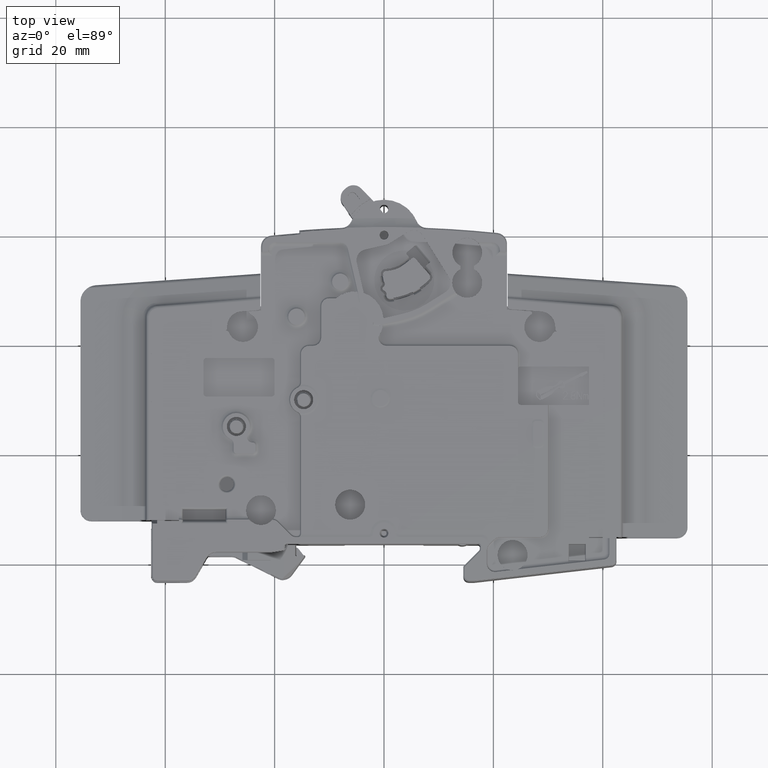
[diagram: clean part render]
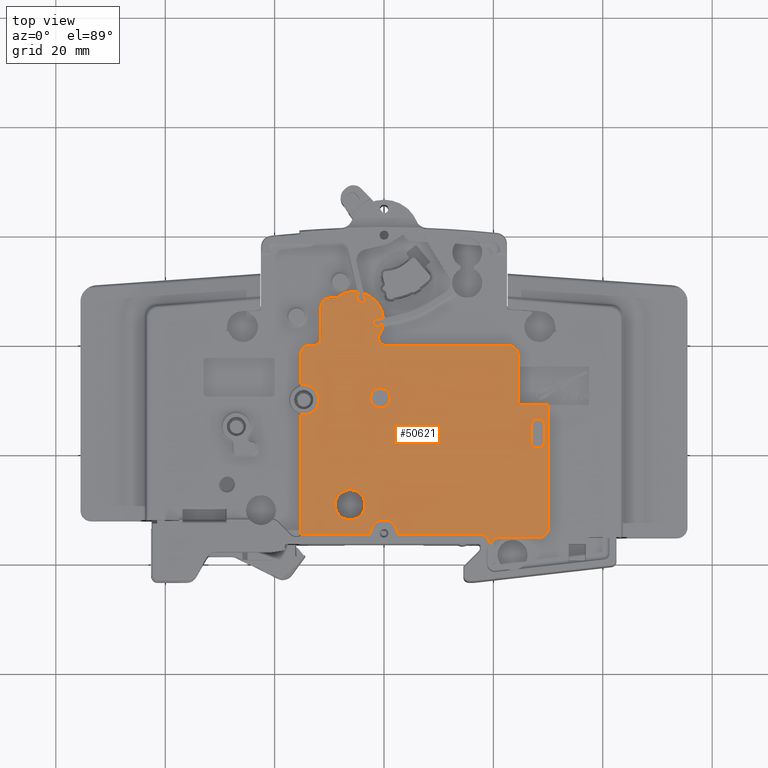
[diagram: same view with one face highlighted and labeled with its STEP entity id]
A machine part, top view. The second image highlights one B-rep face of the part: STEP entity #50621.
In plain terms, the highlighted planar face has unit normal (0, 0, 1).
Its self-contained STEP definition (entity closure, byte-faithful):
#3258=CARTESIAN_POINT('',(2.5E1,-3.055E1,8.65E0));
#3259=DIRECTION('',(0.E0,0.E0,-1.E0));
#3260=DIRECTION('',(0.E0,-1.E0,0.E0));
#3261=AXIS2_PLACEMENT_3D('',#3258,#3259,#3260);
#3295=DIRECTION('',(-1.E0,0.E0,0.E0));
#3296=VECTOR('',#3295,1.241428875250E0);
#3297=CARTESIAN_POINT('',(-8.758571124749E0,-1.15E1,8.65E0));
#3298=LINE('',#3297,#3296);
#3299=CARTESIAN_POINT('',(-5.4E0,-1.56E1,8.65E0));
#3300=DIRECTION('',(0.E0,0.E0,1.E0));
#3301=DIRECTION('',(1.044356285034E-1,9.945316483145E-1,0.E0));
#3302=AXIS2_PLACEMENT_3D('',#3299,#3300,#3301);
#3304=DIRECTION('',(2.249510543439E-1,-9.743700647852E-1,0.E0));
#3305=VECTOR('',#3304,1.032340689714E0);
#3306=CARTESIAN_POINT('',(-4.890192044550E0,-1.117368169806E1,8.65E0));
#3307=LINE('',#3306,#3305);
#3308=CARTESIAN_POINT('',(-5.4E0,-1.56E1,8.65E0));
#3309=DIRECTION('',(0.E0,0.E0,1.E0));
#3310=DIRECTION('',(9.973664915871E-1,7.252641904343E-2,0.E0));
#3311=AXIS2_PLACEMENT_3D('',#3308,#3309,#3310);
#3313=CARTESIAN_POINT('',(-1.018106763539E0,-1.337174104663E1,8.65E0));
#3314=DIRECTION('',(0.E0,0.E0,1.E0));
#3315=DIRECTION('',(-3.044561802590E-1,-9.525263431014E-1,0.E0));
#3316=AXIS2_PLACEMENT_3D('',#3313,#3314,#3315);
#3318=CARTESIAN_POINT('',(-5.4E0,-1.56E1,8.65E0));
#3319=DIRECTION('',(0.E0,0.E0,1.E0));
#3320=DIRECTION('',(8.301886792453E-1,-5.574825170828E-1,0.E0));
#3321=AXIS2_PLACEMENT_3D('',#3318,#3319,#3320);
#3323=DIRECTION('',(-2.138824540900E-14,1.E0,1.222185451943E-14));
#3324=VECTOR('',#3323,1.453426594611E-1);
#3325=CARTESIAN_POINT('',(-1.E0,-1.87E1,8.65E0));
#3326=LINE('',#3325,#3324);
#3327=CARTESIAN_POINT('',(5.E-1,-1.87E1,8.65E0));
#3328=DIRECTION('',(0.E0,0.E0,-1.E0));
#3329=DIRECTION('',(0.E0,-1.E0,0.E0));
#3330=AXIS2_PLACEMENT_3D('',#3327,#3328,#3329);
#3332=DIRECTION('',(-1.E0,0.E0,0.E0));
#3333=VECTOR('',#3332,2.25E1);
#3334=CARTESIAN_POINT('',(2.3E1,-2.02E1,8.65E0));
#3335=LINE('',#3334,#3333);
#3336=CARTESIAN_POINT('',(2.3E1,-2.17E1,8.65E0));
#3337=DIRECTION('',(0.E0,0.E0,1.E0));
#3338=DIRECTION('',(1.E0,0.E0,0.E0));
#3339=AXIS2_PLACEMENT_3D('',#3336,#3337,#3338);
#3341=DIRECTION('',(0.E0,1.E0,0.E0));
#3342=VECTOR('',#3341,2.8E0);
#3343=CARTESIAN_POINT('',(2.45E1,-2.45E1,8.65E0));
#3344=LINE('',#3343,#3342);
#3345=DIRECTION('',(0.E0,1.E0,0.E0));
#3346=VECTOR('',#3345,6.05E0);
#3347=CARTESIAN_POINT('',(2.45E1,-3.055E1,8.65E0));
#3348=LINE('',#3347,#3346);
#3349=DIRECTION('',(-1.E0,0.E0,0.E0));
#3350=VECTOR('',#3349,5.E0);
#3351=CARTESIAN_POINT('',(3.E1,-3.105E1,8.65E0));
#3352=LINE('',#3351,#3350);
#3353=DIRECTION('',(0.E0,1.E0,0.E0));
#3354=VECTOR('',#3353,2.265E1);
#3355=CARTESIAN_POINT('',(3.E1,-5.37E1,8.65E0));
#3356=LINE('',#3355,#3354);
#3357=CARTESIAN_POINT('',(2.85E1,-5.37E1,8.65E0));
#3358=DIRECTION('',(0.E0,0.E0,1.E0));
#3359=DIRECTION('',(0.E0,-1.E0,0.E0));
#3360=AXIS2_PLACEMENT_3D('',#3357,#3358,#3359);
#3362=DIRECTION('',(1.E0,0.E0,0.E0));
#3363=VECTOR('',#3362,7.278679656439E0);
#3364=CARTESIAN_POINT('',(2.122132034356E1,-5.52E1,8.65E0));
#3365=LINE('',#3364,#3363);
#3366=CARTESIAN_POINT('',(2.122132034356E1,-5.67E1,8.65E0));
#3367=DIRECTION('',(0.E0,0.E0,-1.E0));
#3368=DIRECTION('',(-7.071067811865E-1,7.071067811866E-1,0.E0));
#3369=AXIS2_PLACEMENT_3D('',#3366,#3367,#3368);
#3371=DIRECTION('',(7.071067811865E-1,7.071067811865E-1,0.E0));
#3372=VECTOR('',#3371,1.295773814212E0);
#3373=CARTESIAN_POINT('',(1.924440972087E1,-5.655559027913E1,8.65E0));
#3374=LINE('',#3373,#3372);
#3375=DIRECTION('',(0.E0,-1.E0,0.E0));
#3376=VECTOR('',#3375,3.555902791342E-1);
#3377=CARTESIAN_POINT('',(1.924440972087E1,-5.62E1,8.65E0));
#3378=LINE('',#3377,#3376);
#3379=CARTESIAN_POINT('',(1.78E1,-5.62E1,8.65E0));
#3380=DIRECTION('',(0.E0,0.E0,-1.E0));
#3381=DIRECTION('',(0.E0,1.E0,0.E0));
#3382=AXIS2_PLACEMENT_3D('',#3379,#3380,#3381);
#3384=DIRECTION('',(1.E0,0.E0,0.E0));
#3385=VECTOR('',#3384,1.500178628407E1);
#3386=CARTESIAN_POINT('',(2.798213715927E0,-5.475559027913E1,8.65E0));
#3387=LINE('',#3386,#3385);
#3388=CARTESIAN_POINT('',(2.798213715927E0,-5.44E1,8.65E0));
#3389=DIRECTION('',(0.E0,0.E0,1.E0));
#3390=DIRECTION('',(-9.993620414024E-1,-3.571428571430E-2,0.E0));
#3391=AXIS2_PLACEMENT_3D('',#3388,#3389,#3390);
#3393=CARTESIAN_POINT('',(0.E0,-5.45E1,8.65E0));
#3394=DIRECTION('',(0.E0,0.E0,-1.E0));
#3395=DIRECTION('',(-9.993620414024E-1,3.571428571428E-2,0.E0));
#3396=AXIS2_PLACEMENT_3D('',#3393,#3394,#3395);
#3398=CARTESIAN_POINT('',(-2.798213715927E0,-5.44E1,8.65E0));
#3399=DIRECTION('',(0.E0,0.E0,1.E0));
#3400=DIRECTION('',(0.E0,-1.E0,0.E0));
#3401=AXIS2_PLACEMENT_3D('',#3398,#3399,#3400);
#3403=CARTESIAN_POINT('',(-1.58E1,-5.46E1,8.65E0));
#3404=DIRECTION('',(0.E0,0.E0,-1.E0));
#3405=DIRECTION('',(1.E0,7.212008767965E-12,0.E0));
#3406=AXIS2_PLACEMENT_3D('',#3403,#3404,#3405);
#3408=DIRECTION('',(0.E0,-1.E0,0.E0));
#3409=VECTOR('',#3408,2.133772233983E1);
#3410=CARTESIAN_POINT('',(-1.52E1,-3.326227766017E1,8.65E0));
#3411=LINE('',#3410,#3409);
#3412=CARTESIAN_POINT('',(-1.62E1,-3.326227766017E1,8.65E0));
#3413=DIRECTION('',(0.E0,0.E0,-1.E0));
#3414=DIRECTION('',(8.954532289857E-1,4.451556072870E-1,0.E0));
#3415=AXIS2_PLACEMENT_3D('',#3412,#3413,#3414);
#3417=CARTESIAN_POINT('',(-1.62E1,-2.693772233983E1,8.65E0));
#3418=DIRECTION('',(0.E0,0.E0,-1.E0));
#3419=DIRECTION('',(1.E0,2.469136006766E-12,0.E0));
#3420=AXIS2_PLACEMENT_3D('',#3417,#3418,#3419);
#3422=DIRECTION('',(0.E0,-1.E0,0.E0));
#3423=VECTOR('',#3422,5.237722339829E0);
#3424=CARTESIAN_POINT('',(-1.52E1,-2.17E1,8.65E0));
#3425=LINE('',#3424,#3423);
#3426=CARTESIAN_POINT('',(-1.37E1,-2.17E1,8.65E0));
#3427=DIRECTION('',(0.E0,0.E0,1.E0));
#3428=DIRECTION('',(0.E0,1.E0,0.E0));
#3429=AXIS2_PLACEMENT_3D('',#3426,#3427,#3428);
#3431=DIRECTION('',(-1.E0,0.E0,0.E0));
#3432=VECTOR('',#3431,6.999999999983E-1);
#3433=CARTESIAN_POINT('',(-1.3E1,-2.02E1,8.65E0));
#3434=LINE('',#3433,#3432);
#3435=CARTESIAN_POINT('',(-1.3E1,-1.87E1,8.65E0));
#3436=DIRECTION('',(0.E0,0.E0,-1.E0));
#3437=DIRECTION('',(1.E0,0.E0,0.E0));
#3438=AXIS2_PLACEMENT_3D('',#3435,#3436,#3437);
#3440=DIRECTION('',(0.E0,-1.E0,0.E0));
#3441=VECTOR('',#3440,5.699999999998E0);
#3442=CARTESIAN_POINT('',(-1.15E1,-1.3E1,8.65E0));
#3443=LINE('',#3442,#3441);
#3444=CARTESIAN_POINT('',(-1.E1,-1.3E1,8.65E0));
#3445=DIRECTION('',(0.E0,0.E0,1.E0));
#3446=DIRECTION('',(0.E0,1.E0,0.E0));
#3447=AXIS2_PLACEMENT_3D('',#3444,#3445,#3446);
#3449=CARTESIAN_POINT('',(-6.2E0,-4.93E1,8.65E0));
#3450=DIRECTION('',(0.E0,0.E0,-1.E0));
#3451=DIRECTION('',(1.E0,0.E0,0.E0));
#3452=AXIS2_PLACEMENT_3D('',#3449,#3450,#3451);
#3454=CARTESIAN_POINT('',(-6.2E0,-4.93E1,8.65E0));
#3455=DIRECTION('',(0.E0,0.E0,-1.E0));
#3456=DIRECTION('',(-1.E0,0.E0,0.E0));
#3457=AXIS2_PLACEMENT_3D('',#3454,#3455,#3456);
#3459=CARTESIAN_POINT('',(-6.5E-1,-2.98E1,8.65E0));
#3460=DIRECTION('',(0.E0,0.E0,-1.E0));
#3461=DIRECTION('',(-1.E0,0.E0,0.E0));
#3462=AXIS2_PLACEMENT_3D('',#3459,#3460,#3461);
#3464=CARTESIAN_POINT('',(-6.5E-1,-2.98E1,8.65E0));
#3465=DIRECTION('',(0.E0,0.E0,-1.E0));
#3466=DIRECTION('',(1.E0,0.E0,0.E0));
#3467=AXIS2_PLACEMENT_3D('',#3464,#3465,#3466);
#3469=CARTESIAN_POINT('',(2.78E1,-3.815E1,8.65E0));
#3470=DIRECTION('',(0.E0,0.E0,-1.E0));
#3471=DIRECTION('',(0.E0,-1.E0,0.E0));
#3472=AXIS2_PLACEMENT_3D('',#3469,#3470,#3471);
#3474=DIRECTION('',(-1.E0,-5.075305255507E-14,0.E0));
#3475=VECTOR('',#3474,6.999999999893E-1);
#3476=CARTESIAN_POINT('',(2.85E1,-3.893356409098E1,8.65E0));
#3477=LINE('',#3476,#3475);
#3478=CARTESIAN_POINT('',(2.85E1,-3.815E1,8.65E0));
#3479=DIRECTION('',(0.E0,0.E0,-1.E0));
#3480=DIRECTION('',(1.E0,0.E0,0.E0));
#3481=AXIS2_PLACEMENT_3D('',#3478,#3479,#3480);
#3483=DIRECTION('',(1.056212174782E-14,-1.E0,0.E0));
#3484=VECTOR('',#3483,3.699999999989E0);
#3485=CARTESIAN_POINT('',(2.928356409098E1,-3.445E1,8.65E0));
#3486=LINE('',#3485,#3484);
#3487=CARTESIAN_POINT('',(2.85E1,-3.445E1,8.65E0));
#3488=DIRECTION('',(0.E0,0.E0,-1.E0));
#3489=DIRECTION('',(0.E0,1.E0,0.E0));
#3490=AXIS2_PLACEMENT_3D('',#3487,#3488,#3489);
#3492=DIRECTION('',(1.E0,4.060244204405E-14,0.E0));
#3493=VECTOR('',#3492,6.999999999893E-1);
#3494=CARTESIAN_POINT('',(2.78E1,-3.366643590902E1,8.65E0));
#3495=LINE('',#3494,#3493);
#3496=CARTESIAN_POINT('',(2.78E1,-3.445E1,8.65E0));
#3497=DIRECTION('',(0.E0,0.E0,-1.E0));
#3498=DIRECTION('',(-1.E0,0.E0,0.E0));
#3499=AXIS2_PLACEMENT_3D('',#3496,#3497,#3498);
#3501=DIRECTION('',(0.E0,1.E0,0.E0));
#3502=VECTOR('',#3501,3.699999999989E0);
#3503=CARTESIAN_POINT('',(2.701643590902E1,-3.815E1,8.65E0));
#3504=LINE('',#3503,#3502);
#3520=CARTESIAN_POINT('',(-8.758571124749E0,-1.15E1,8.65E0));
#4473=CARTESIAN_POINT('',(-1.530454677101E1,-2.738287794712E1,8.65E0));
#4513=CARTESIAN_POINT('',(-1.47E1,-3.01E1,8.65E0));
#4514=DIRECTION('',(0.E0,0.E0,-1.E0));
#4515=DIRECTION('',(-2.171844266037E-1,9.761305880059E-1,0.E0));
#4516=AXIS2_PLACEMENT_3D('',#4513,#4514,#4515);
#4661=DIRECTION('',(1.E0,0.E0,0.E0));
#4662=VECTOR('',#4661,1.242231094807E1);
#4663=CARTESIAN_POINT('',(-1.522052466399E1,-5.475559027913E1,8.65E0));
#4664=LINE('',#4663,#4662);
#4692=CARTESIAN_POINT('',(1.924440972087E1,-5.655559027913E1,8.65E0));
#27537=CARTESIAN_POINT('',(-1.018106763539E0,-1.337174104663E1,8.65E0));
#27538=DIRECTION('',(0.E0,0.E0,1.E0));
#27539=DIRECTION('',(1.975335883060E-1,-9.802961192879E-1,0.E0));
#27540=AXIS2_PLACEMENT_3D('',#27537,#27538,#27539);
#27548=CARTESIAN_POINT('',(-4.164623495514E-1,-1.635751891898E1,8.65E0));
#27549=CARTESIAN_POINT('',(-4.443675478455E-1,-1.636314227824E1,8.65E0));
#27550=CARTESIAN_POINT('',(-4.975983581762E-1,-1.637654312609E1,8.65E0));
#27551=CARTESIAN_POINT('',(-5.695185018855E-1,-1.640215931198E1,8.65E0));
#27552=CARTESIAN_POINT('',(-6.347800025323E-1,-1.643281819618E1,8.65E0));
#27553=CARTESIAN_POINT('',(-6.938449604105E-1,-1.646804616479E1,8.65E0));
#27554=CARTESIAN_POINT('',(-7.470800157760E-1,-1.650747680990E1,8.65E0));
#27555=CARTESIAN_POINT('',(-7.945733402399E-1,-1.655071312324E1,8.65E0));
#27556=CARTESIAN_POINT('',(-8.362848105308E-1,-1.659733878290E1,8.65E0));
#27557=CARTESIAN_POINT('',(-8.599739954570E-1,-1.663004783206E1,8.65E0));
#27558=CARTESIAN_POINT('',(-8.708728184367E-1,-1.664682142355E1,8.65E0));
#27581=CARTESIAN_POINT('',(-5.4E0,-1.56E1,8.65E0));
#27582=DIRECTION('',(0.E0,0.E0,1.E0));
#27583=DIRECTION('',(9.667907663312E-1,-2.555691963770E-1,0.E0));
#27584=AXIS2_PLACEMENT_3D('',#27581,#27582,#27583);
#27595=CARTESIAN_POINT('',(-1.407282651157E0,-1.584126369858E1,8.65E0));
#27596=DIRECTION('',(0.E0,0.E0,1.E0));
#27597=DIRECTION('',(1.556703550472E-1,9.878090607802E-1,0.E0));
#27598=AXIS2_PLACEMENT_3D('',#27595,#27596,#27597);
#27600=CARTESIAN_POINT('',(-1.018106763539E0,-1.337174104663E1,8.65E0));
#27601=DIRECTION('',(0.E0,0.E0,1.E0));
#27602=DIRECTION('',(-1.556703550472E-1,-9.878090607802E-1,0.E0));
#27603=AXIS2_PLACEMENT_3D('',#27600,#27601,#27602);
#27621=DIRECTION('',(9.743700647852E-1,2.249510543439E-1,0.E0));
#27622=VECTOR('',#27621,4.661956239013E-1);
#27623=CARTESIAN_POINT('',(-5.682046548517E-1,-1.532048117620E1,8.65E0));
#27624=LINE('',#27623,#27622);
#27674=DIRECTION('',(-2.249510543439E-1,9.743700647852E-1,0.E0));
#27675=VECTOR('',#27674,1.225098602502E0);
#27676=CARTESIAN_POINT('',(-3.440926907261E0,-1.176817701154E1,8.65E0));
#27677=LINE('',#27676,#27675);
#27690=CARTESIAN_POINT('',(-3.928111939654E0,-1.188065253871E1,8.65E0));
#27691=DIRECTION('',(0.E0,0.E0,-1.E0));
#27692=DIRECTION('',(9.743700647852E-1,2.249510543439E-1,0.E0));
#27693=AXIS2_PLACEMENT_3D('',#27690,#27691,#27692);
#27695=CARTESIAN_POINT('',(-5.4E0,-1.56E1,8.65E0));
#27696=DIRECTION('',(0.E0,0.E0,1.E0));
#27697=DIRECTION('',(3.679720150865E-1,9.298368653227E-1,0.E0));
#27698=AXIS2_PLACEMENT_3D('',#27695,#27696,#27697);
#27723=CARTESIAN_POINT('',(-5.534882395745E0,-1.07E1,8.65E0));
#27724=DIRECTION('',(0.E0,0.E0,-1.E0));
#27725=DIRECTION('',(9.936122715264E-1,-1.128479236500E-1,0.E0));
#27726=AXIS2_PLACEMENT_3D('',#27723,#27724,#27725);
#27736=DIRECTION('',(2.249510543438E-1,-9.743700647853E-1,0.E0));
#27737=VECTOR('',#27736,4.734300566731E-1);
#27738=CARTESIAN_POINT('',(-4.846491168932E0,-1.032898226393E1,8.65E0));
#27739=LINE('',#27738,#27737);
#29439=DIRECTION('',(9.743700647852E-1,2.249510543441E-1,0.E0));
#29440=VECTOR('',#29439,1.919348744094E-1);
#29441=CARTESIAN_POINT('',(-3.329527847108E-1,-1.633946897609E1,8.65E0));
#29442=LINE('',#29441,#29440);
#29575=CARTESIAN_POINT('',(-1.E0,-1.855465734054E1,8.65E0));
#43609=CARTESIAN_POINT('',(-3.45E0,-4.93E1,8.65E0));
#43610=CARTESIAN_POINT('',(-8.95E0,-4.93E1,8.65E0));
#43611=VERTEX_POINT('',#43609);
#43612=VERTEX_POINT('',#43610);
#43744=CARTESIAN_POINT('',(-2.433564090981E0,-2.98E1,8.65E0));
#43745=CARTESIAN_POINT('',(1.133564090981E0,-2.98E1,8.65E0));
#43746=VERTEX_POINT('',#43744);
#43747=VERTEX_POINT('',#43745);
#43752=CARTESIAN_POINT('',(2.78E1,-3.893356409098E1,8.65E0));
#43753=CARTESIAN_POINT('',(2.701643590902E1,-3.815E1,8.65E0));
#43754=VERTEX_POINT('',#43752);
#43755=VERTEX_POINT('',#43753);
#43758=CARTESIAN_POINT('',(2.701643590902E1,-3.445000000001E1,8.65E0));
#43759=VERTEX_POINT('',#43758);
#43762=CARTESIAN_POINT('',(2.78E1,-3.366643590902E1,8.65E0));
#43763=VERTEX_POINT('',#43762);
#43766=CARTESIAN_POINT('',(2.849999999999E1,-3.366643590902E1,8.65E0));
#43767=VERTEX_POINT('',#43766);
#43770=CARTESIAN_POINT('',(2.928356409098E1,-3.445E1,8.65E0));
#43771=VERTEX_POINT('',#43770);
#43774=CARTESIAN_POINT('',(2.928356409098E1,-3.814999999999E1,8.65E0));
#43775=VERTEX_POINT('',#43774);
#43778=CARTESIAN_POINT('',(2.85E1,-3.893356409098E1,8.65E0));
#43779=VERTEX_POINT('',#43778);
#43784=CARTESIAN_POINT('',(1.78E1,-5.475559027913E1,8.65E0));
#43785=CARTESIAN_POINT('',(1.924440972087E1,-5.62E1,8.65E0));
#43786=VERTEX_POINT('',#43784);
#43787=VERTEX_POINT('',#43785);
#43790=CARTESIAN_POINT('',(2.798213715927E0,-5.475559027913E1,8.65E0));
#43791=VERTEX_POINT('',#43790);
#43794=CARTESIAN_POINT('',(2.442850288668E0,-5.441269965283E1,8.65E0));
#43795=VERTEX_POINT('',#43794);
#43798=CARTESIAN_POINT('',(-2.442850288668E0,-5.441269965283E1,8.65E0));
#43799=VERTEX_POINT('',#43798);
#43802=CARTESIAN_POINT('',(-2.798213715927E0,-5.475559027913E1,8.65E0));
#43803=VERTEX_POINT('',#43802);
#43890=CARTESIAN_POINT('',(2.45E1,-3.055E1,8.65E0));
#43892=VERTEX_POINT('',#43890);
#43895=CARTESIAN_POINT('',(2.5E1,-3.105E1,8.65E0));
#43896=VERTEX_POINT('',#43895);
#44132=CARTESIAN_POINT('',(5.E-1,-2.02E1,8.65E0));
#44133=CARTESIAN_POINT('',(-1.E0,-1.87E1,8.65E0));
#44134=VERTEX_POINT('',#44132);
#44135=VERTEX_POINT('',#44133);
#44138=CARTESIAN_POINT('',(2.3E1,-2.02E1,8.65E0));
#44139=VERTEX_POINT('',#44138);
#44142=CARTESIAN_POINT('',(2.45E1,-2.17E1,8.65E0));
#44143=VERTEX_POINT('',#44142);
#44144=CARTESIAN_POINT('',(2.45E1,-2.45E1,8.65E0));
#44145=VERTEX_POINT('',#44144);
#44152=CARTESIAN_POINT('',(3.E1,-5.37E1,8.65E0));
#44153=CARTESIAN_POINT('',(3.E1,-3.105E1,8.65E0));
#44154=VERTEX_POINT('',#44152);
#44155=VERTEX_POINT('',#44153);
#44158=CARTESIAN_POINT('',(2.85E1,-5.52E1,8.65E0));
#44159=VERTEX_POINT('',#44158);
#44162=CARTESIAN_POINT('',(2.122132034356E1,-5.52E1,8.65E0));
#44163=VERTEX_POINT('',#44162);
#44166=CARTESIAN_POINT('',(2.016066017178E1,-5.563933982822E1,8.65E0));
#44167=VERTEX_POINT('',#44166);
#44171=VERTEX_POINT('',#4692);
#44194=CARTESIAN_POINT('',(-1.3E1,-2.02E1,8.65E0));
#44195=CARTESIAN_POINT('',(-1.37E1,-2.02E1,8.65E0));
#44196=VERTEX_POINT('',#44194);
#44197=VERTEX_POINT('',#44195);
#44210=VERTEX_POINT('',#4473);
#44211=CARTESIAN_POINT('',(-1.522052466399E1,-5.475559027913E1,8.65E0));
#44212=VERTEX_POINT('',#44211);
#44213=CARTESIAN_POINT('',(-1.530454677101E1,-3.281712205288E1,8.65E0));
#44214=VERTEX_POINT('',#44213);
#44229=CARTESIAN_POINT('',(-1.52E1,-5.46E1,8.65E0));
#44230=VERTEX_POINT('',#44229);
#44233=CARTESIAN_POINT('',(-1.52E1,-3.326227766017E1,8.65E0));
#44234=VERTEX_POINT('',#44233);
#44241=CARTESIAN_POINT('',(-1.52E1,-2.693772233983E1,8.65E0));
#44242=VERTEX_POINT('',#44241);
#44245=CARTESIAN_POINT('',(-1.52E1,-2.17E1,8.65E0));
#44246=VERTEX_POINT('',#44245);
#44249=CARTESIAN_POINT('',(-1.15E1,-1.87E1,8.65E0));
#44250=VERTEX_POINT('',#44249);
#44253=CARTESIAN_POINT('',(-1.15E1,-1.3E1,8.65E0));
#44254=VERTEX_POINT('',#44253);
#44257=CARTESIAN_POINT('',(-1.E1,-1.15E1,8.65E0));
#44258=VERTEX_POINT('',#44257);
#44802=CARTESIAN_POINT('',(-1.329447473634E0,-1.534735916819E1,8.65E0));
#44803=CARTESIAN_POINT('',(-5.682046548517E-1,-1.532048117620E1,8.65E0));
#44804=VERTEX_POINT('',#44802);
#44805=VERTEX_POINT('',#44803);
#44808=CARTESIAN_POINT('',(-1.139575945884E-1,-1.521560997907E1,8.65E0));
#44809=VERTEX_POINT('',#44808);
#44814=CARTESIAN_POINT('',(-3.440926907261E0,-1.176817701154E1,8.65E0));
#44815=CARTESIAN_POINT('',(-3.716514129569E0,-1.057447760685E1,8.65E0));
#44816=VERTEX_POINT('',#44814);
#44817=VERTEX_POINT('',#44815);
#44818=CARTESIAN_POINT('',(-3.329527847108E-1,-1.633946897609E1,8.65E0));
#44819=CARTESIAN_POINT('',(-1.459371886980E-1,-1.629629302373E1,8.65E0));
#44820=VERTEX_POINT('',#44818);
#44821=VERTEX_POINT('',#44819);
#44823=CARTESIAN_POINT('',(-4.112097947197E0,-1.234557097137E1,8.65E0));
#44824=CARTESIAN_POINT('',(-4.657965917957E0,-1.217956356278E1,8.65E0));
#44825=VERTEX_POINT('',#44823);
#44826=VERTEX_POINT('',#44824);
#44827=CARTESIAN_POINT('',(-2.016232317841E0,-1.649449218732E1,8.65E0));
#44828=CARTESIAN_POINT('',(-1.906372319763E0,-1.581110573625E1,8.65E0));
#44829=VERTEX_POINT('',#44827);
#44830=VERTEX_POINT('',#44828);
#44835=CARTESIAN_POINT('',(-4.846491168932E0,-1.032898226393E1,8.65E0));
#44836=CARTESIAN_POINT('',(-4.739992578525E0,-1.079027833893E1,8.65E0));
#44837=VERTEX_POINT('',#44835);
#44838=VERTEX_POINT('',#44836);
#44840=CARTESIAN_POINT('',(-4.164606660143E-1,-1.635751850172E1,8.65E0));
#44841=VERTEX_POINT('',#44840);
#44842=CARTESIAN_POINT('',(-4.890192044550E0,-1.117368169806E1,8.65E0));
#44843=VERTEX_POINT('',#44842);
#44845=VERTEX_POINT('',#3520);
#44846=VERTEX_POINT('',#29575);
#44847=VERTEX_POINT('',#27558);
#50490=CARTESIAN_POINT('',(0.E0,0.E0,8.65E0));
#50491=DIRECTION('',(0.E0,0.E0,1.E0));
#50492=DIRECTION('',(1.E0,0.E0,0.E0));
#50493=AXIS2_PLACEMENT_3D('',#50490,#50491,#50492);
#50494=PLANE('',#50493);
#50496=ORIENTED_EDGE('',*,*,#50495,.F.);
#50498=ORIENTED_EDGE('',*,*,#50497,.F.);
#50500=ORIENTED_EDGE('',*,*,#50499,.T.);
#50502=ORIENTED_EDGE('',*,*,#50501,.T.);
#50504=ORIENTED_EDGE('',*,*,#50503,.T.);
#50506=ORIENTED_EDGE('',*,*,#50505,.F.);
#50508=ORIENTED_EDGE('',*,*,#50507,.F.);
#50510=ORIENTED_EDGE('',*,*,#50509,.T.);
#50512=ORIENTED_EDGE('',*,*,#50511,.F.);
#50514=ORIENTED_EDGE('',*,*,#50513,.F.);
#50516=ORIENTED_EDGE('',*,*,#50515,.F.);
#50518=ORIENTED_EDGE('',*,*,#50517,.T.);
#50520=ORIENTED_EDGE('',*,*,#50519,.F.);
#50522=ORIENTED_EDGE('',*,*,#50521,.T.);
#50524=ORIENTED_EDGE('',*,*,#50523,.F.);
#50526=ORIENTED_EDGE('',*,*,#50525,.T.);
#50528=ORIENTED_EDGE('',*,*,#50527,.T.);
#50530=ORIENTED_EDGE('',*,*,#50529,.F.);
#50532=ORIENTED_EDGE('',*,*,#50531,.F.);
#50534=ORIENTED_EDGE('',*,*,#50533,.F.);
#50536=ORIENTED_EDGE('',*,*,#50535,.F.);
#50538=ORIENTED_EDGE('',*,*,#50537,.F.);
#50539=ORIENTED_EDGE('',*,*,#50469,.F.);
#50540=ORIENTED_EDGE('',*,*,#50420,.F.);
#50541=ORIENTED_EDGE('',*,*,#50394,.F.);
#50542=ORIENTED_EDGE('',*,*,#49949,.F.);
#50544=ORIENTED_EDGE('',*,*,#50543,.F.);
#50546=ORIENTED_EDGE('',*,*,#50545,.F.);
#50548=ORIENTED_EDGE('',*,*,#50547,.F.);
#50550=ORIENTED_EDGE('',*,*,#50549,.F.);
#50552=ORIENTED_EDGE('',*,*,#50551,.F.);
#50554=ORIENTED_EDGE('',*,*,#50553,.F.);
#50556=ORIENTED_EDGE('',*,*,#50555,.F.);
#50558=ORIENTED_EDGE('',*,*,#50557,.F.);
#50560=ORIENTED_EDGE('',*,*,#50559,.F.);
#50562=ORIENTED_EDGE('',*,*,#50561,.F.);
#50564=ORIENTED_EDGE('',*,*,#50563,.F.);
#50566=ORIENTED_EDGE('',*,*,#50565,.F.);
#50568=ORIENTED_EDGE('',*,*,#50567,.F.);
#50570=ORIENTED_EDGE('',*,*,#50569,.F.);
#50572=ORIENTED_EDGE('',*,*,#50571,.F.);
#50574=ORIENTED_EDGE('',*,*,#50573,.F.);
#50576=ORIENTED_EDGE('',*,*,#50575,.F.);
#50578=ORIENTED_EDGE('',*,*,#50577,.F.);
#50580=ORIENTED_EDGE('',*,*,#50579,.F.);
#50582=ORIENTED_EDGE('',*,*,#50581,.F.);
#50584=ORIENTED_EDGE('',*,*,#50583,.F.);
#50586=ORIENTED_EDGE('',*,*,#50585,.F.);
#50588=ORIENTED_EDGE('',*,*,#50587,.F.);
#50589=EDGE_LOOP('',(#50496,#50498,#50500,#50502,#50504,#50506,#50508,#50510,
#50512,#50514,#50516,#50518,#50520,#50522,#50524,#50526,#50528,#50530,#50532,
#50534,#50536,#50538,#50539,#50540,#50541,#50542,#50544,#50546,#50548,#50550,
#50552,#50554,#50556,#50558,#50560,#50562,#50564,#50566,#50568,#50570,#50572,
#50574,#50576,#50578,#50580,#50582,#50584,#50586,#50588));
#50590=FACE_OUTER_BOUND('',#50589,.F.);
#50592=ORIENTED_EDGE('',*,*,#50591,.F.);
#50594=ORIENTED_EDGE('',*,*,#50593,.F.);
#50595=EDGE_LOOP('',(#50592,#50594));
#50596=FACE_BOUND('',#50595,.F.);
#50598=ORIENTED_EDGE('',*,*,#50597,.F.);
#50600=ORIENTED_EDGE('',*,*,#50599,.F.);
#50601=EDGE_LOOP('',(#50598,#50600));
#50602=FACE_BOUND('',#50601,.F.);
#50604=ORIENTED_EDGE('',*,*,#50603,.F.);
#50606=ORIENTED_EDGE('',*,*,#50605,.F.);
#50608=ORIENTED_EDGE('',*,*,#50607,.F.);
#50610=ORIENTED_EDGE('',*,*,#50609,.F.);
#50612=ORIENTED_EDGE('',*,*,#50611,.F.);
#50614=ORIENTED_EDGE('',*,*,#50613,.F.);
#50616=ORIENTED_EDGE('',*,*,#50615,.F.);
#50618=ORIENTED_EDGE('',*,*,#50617,.F.);
#50619=EDGE_LOOP('',(#50604,#50606,#50608,#50610,#50612,#50614,#50616,#50618));
#50620=FACE_BOUND('',#50619,.F.);
#3262=CIRCLE('',#3261,5.E-1);
#3303=CIRCLE('',#3302,5.3E0);
#3312=CIRCLE('',#3311,5.3E0);
#3317=CIRCLE('',#3316,3.278388218142E0);
#3322=CIRCLE('',#3321,5.3E0);
#3331=CIRCLE('',#3330,1.5E0);
#3340=CIRCLE('',#3339,1.5E0);
#3361=CIRCLE('',#3360,1.5E0);
#3370=CIRCLE('',#3369,1.5E0);
#3383=CIRCLE('',#3382,1.444409720866E0);
#3392=CIRCLE('',#3391,3.555902791342E-1);
#3397=CIRCLE('',#3396,2.444409720866E0);
#3402=CIRCLE('',#3401,3.555902791342E-1);
#3407=CIRCLE('',#3406,6.E-1);
#3416=CIRCLE('',#3415,1.E0);
#3421=CIRCLE('',#3420,1.E0);
#3430=CIRCLE('',#3429,1.5E0);
#3439=CIRCLE('',#3438,1.5E0);
#3448=CIRCLE('',#3447,1.5E0);
#3453=CIRCLE('',#3452,2.75E0);
#3458=CIRCLE('',#3457,2.75E0);
#3463=CIRCLE('',#3462,1.783564090981E0);
#3468=CIRCLE('',#3467,1.783564090981E0);
#3473=CIRCLE('',#3472,7.835640909809E-1);
#3482=CIRCLE('',#3481,7.835640909809E-1);
#3491=CIRCLE('',#3490,7.835640909809E-1);
#3500=CIRCLE('',#3499,7.835640909809E-1);
#4517=CIRCLE('',#4516,2.783564090981E0);
#27541=CIRCLE('',#27540,3.045791364824E0);
#27559=B_SPLINE_CURVE_WITH_KNOTS('',3,(#27548,#27549,#27550,#27551,#27552,
#27553,#27554,#27555,#27556,#27557,#27558),.UNSPECIFIED.,.F.,.F.,(4,1,1,1,1,1,1,
1,4),(0.E0,1.25E-1,2.5E-1,3.75E-1,5.E-1,6.25E-1,7.5E-1,8.75E-1,1.E0),
.UNSPECIFIED.);
#27585=CIRCLE('',#27584,3.5E0);
#27599=CIRCLE('',#27598,5.E-1);
#27604=CIRCLE('',#27603,2.E0);
#27694=CIRCLE('',#27693,5.E-1);
#27699=CIRCLE('',#27698,3.5E0);
#27727=CIRCLE('',#27726,8.E-1);
#49949=EDGE_CURVE('',#44155,#43896,#3352,.T.);
#50394=EDGE_CURVE('',#43896,#43892,#3262,.T.);
#50420=EDGE_CURVE('',#43892,#44145,#3348,.T.);
#50469=EDGE_CURVE('',#44145,#44143,#3344,.T.);
#50495=EDGE_CURVE('',#44845,#44258,#3298,.T.);
#50497=EDGE_CURVE('',#44837,#44845,#3303,.T.);
#50499=EDGE_CURVE('',#44837,#44838,#27739,.T.);
#50501=EDGE_CURVE('',#44838,#44843,#27727,.T.);
#50503=EDGE_CURVE('',#44843,#44826,#3307,.T.);
#50505=EDGE_CURVE('',#44825,#44826,#27699,.T.);
#50507=EDGE_CURVE('',#44816,#44825,#27694,.T.);
#50509=EDGE_CURVE('',#44816,#44817,#27677,.T.);
#50511=EDGE_CURVE('',#44809,#44817,#3312,.T.);
#50513=EDGE_CURVE('',#44805,#44809,#27624,.T.);
#50515=EDGE_CURVE('',#44804,#44805,#27604,.T.);
#50517=EDGE_CURVE('',#44804,#44830,#27599,.T.);
#50519=EDGE_CURVE('',#44829,#44830,#27585,.T.);
#50521=EDGE_CURVE('',#44829,#44847,#3317,.T.);
#50523=EDGE_CURVE('',#44841,#44847,#27559,.T.);
#50525=EDGE_CURVE('',#44841,#44820,#27541,.T.);
#50527=EDGE_CURVE('',#44820,#44821,#29442,.T.);
#50529=EDGE_CURVE('',#44846,#44821,#3322,.T.);
#50531=EDGE_CURVE('',#44135,#44846,#3326,.T.);
#50533=EDGE_CURVE('',#44134,#44135,#3331,.T.);
#50535=EDGE_CURVE('',#44139,#44134,#3335,.T.);
#50537=EDGE_CURVE('',#44143,#44139,#3340,.T.);
#50543=EDGE_CURVE('',#44154,#44155,#3356,.T.);
#50545=EDGE_CURVE('',#44159,#44154,#3361,.T.);
#50547=EDGE_CURVE('',#44163,#44159,#3365,.T.);
#50549=EDGE_CURVE('',#44167,#44163,#3370,.T.);
#50551=EDGE_CURVE('',#44171,#44167,#3374,.T.);
#50553=EDGE_CURVE('',#43787,#44171,#3378,.T.);
#50555=EDGE_CURVE('',#43786,#43787,#3383,.T.);
#50557=EDGE_CURVE('',#43791,#43786,#3387,.T.);
#50559=EDGE_CURVE('',#43795,#43791,#3392,.T.);
#50561=EDGE_CURVE('',#43799,#43795,#3397,.T.);
#50563=EDGE_CURVE('',#43803,#43799,#3402,.T.);
#50565=EDGE_CURVE('',#44212,#43803,#4664,.T.);
#50567=EDGE_CURVE('',#44230,#44212,#3407,.T.);
#50569=EDGE_CURVE('',#44234,#44230,#3411,.T.);
#50571=EDGE_CURVE('',#44214,#44234,#3416,.T.);
#50573=EDGE_CURVE('',#44210,#44214,#4517,.T.);
#50575=EDGE_CURVE('',#44242,#44210,#3421,.T.);
#50577=EDGE_CURVE('',#44246,#44242,#3425,.T.);
#50579=EDGE_CURVE('',#44197,#44246,#3430,.T.);
#50581=EDGE_CURVE('',#44196,#44197,#3434,.T.);
#50583=EDGE_CURVE('',#44250,#44196,#3439,.T.);
#50585=EDGE_CURVE('',#44254,#44250,#3443,.T.);
#50587=EDGE_CURVE('',#44258,#44254,#3448,.T.);
#50591=EDGE_CURVE('',#43611,#43612,#3453,.T.);
#50593=EDGE_CURVE('',#43612,#43611,#3458,.T.);
#50597=EDGE_CURVE('',#43746,#43747,#3463,.T.);
#50599=EDGE_CURVE('',#43747,#43746,#3468,.T.);
#50603=EDGE_CURVE('',#43754,#43755,#3473,.T.);
#50605=EDGE_CURVE('',#43779,#43754,#3477,.T.);
#50607=EDGE_CURVE('',#43775,#43779,#3482,.T.);
#50609=EDGE_CURVE('',#43771,#43775,#3486,.T.);
#50611=EDGE_CURVE('',#43767,#43771,#3491,.T.);
#50613=EDGE_CURVE('',#43763,#43767,#3495,.T.);
#50615=EDGE_CURVE('',#43759,#43763,#3500,.T.);
#50617=EDGE_CURVE('',#43755,#43759,#3504,.T.);
#50621=ADVANCED_FACE('',(#50590,#50596,#50602,#50620),#50494,.T.);